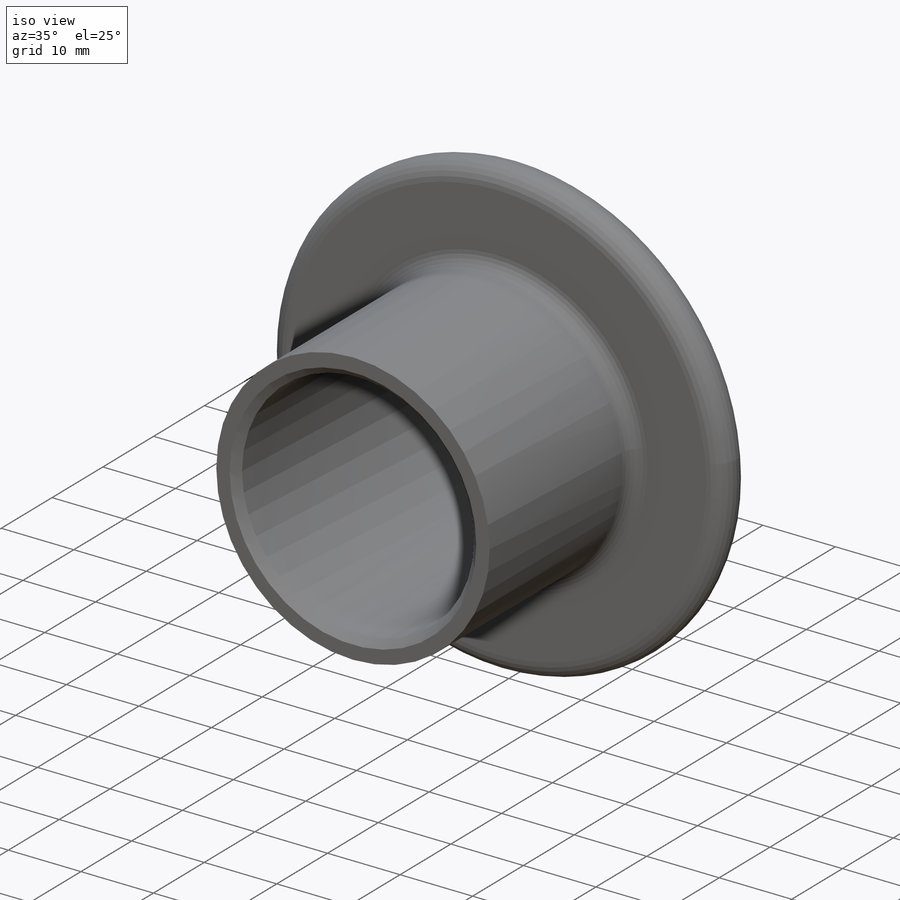
[diagram: iso view]
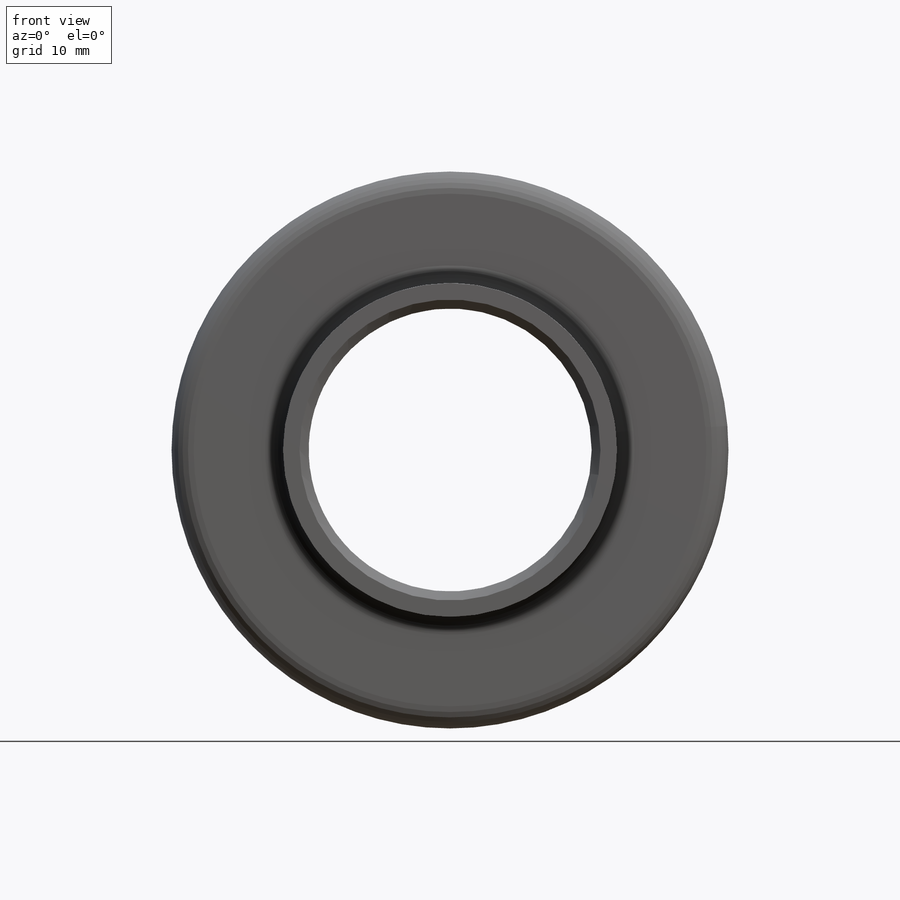
[diagram: front view]
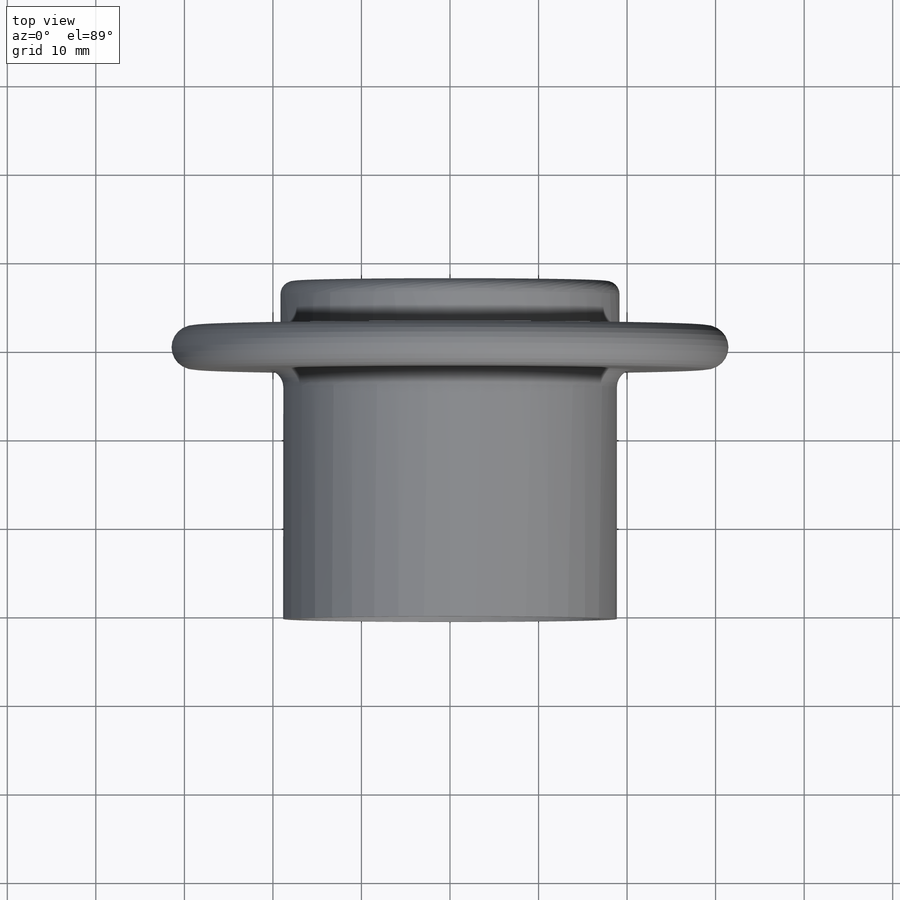
[diagram: top view]
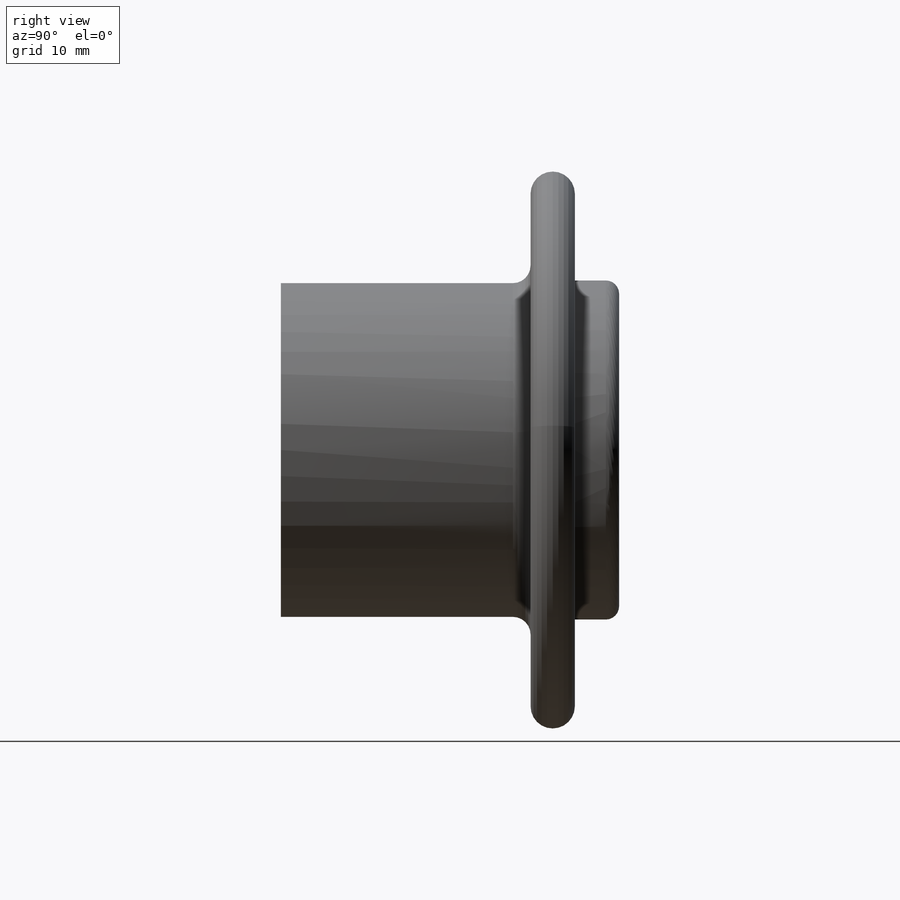
[diagram: right view]
SOLIDWORKS PART (.sldprt)
format: sldprt  version: not decoded by parser v0  size: 250,368 bytes
history: native  units: mm
features: sketch x4, extrude x3, fillet x3, material x1, cut_extrude x1, chamfer x1 (+11 scaffold rows collapsed)
feature tree (24):
  scaffold x11  (default folders/planes/origin — collapsed)
  material  "Alloy Steel"
  sketch  "Sketch1"  dims[D1=~50.275209mm]
  extrude  "Boss-Extrude1"  Depth=5mm
  sketch  "Sketch2"  dims[D1=37.7mm]
  extrude  "Boss-Extrude2"  Depth=28.2mm
  sketch  "Sketch3"  dims[D1=38.3mm]
  extrude  "Boss-Extrude3"  Depth=5mm
  sketch  "Sketch5"  dims[D1=~8.670021mm]
  cut_extrude  "Cut-Extrude2"  [1 undecoded]
  fillet  "Fillet7"  Radius=2mm
  chamfer  "Chamfer2"  Distance=1mm Angle=45deg
  fillet  "Fillet8"  Radius=2.5mm
  fillet  "Fillet9"  Radius=1.5mm
decode coverage: 11 of 12 modeling features carry decoded parameters
note: ~ marks probable driven/reference dimensions
note: 1 parameter value undecoded
note: suppression state not decoded; provenance and decode notes live in map.json
